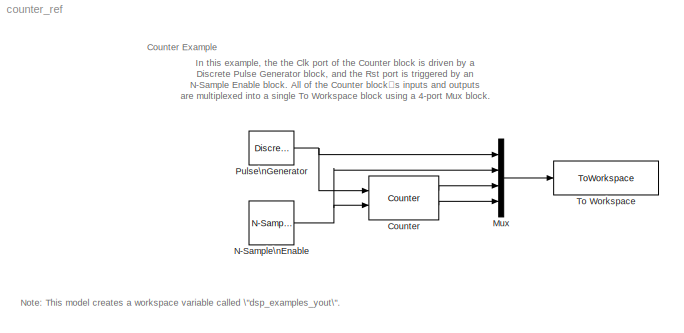
MODEL counter_ref
KIND model
CONFIG AbsTol = auto
CONFIG FixedStep = auto
CONFIG MaxStep = auto
CONFIG MinStep = auto
CONFIG PostLoadFcn = set_param(gcs,'SimulationCommand','Update')
CONFIG RelTol = 1e-3
CONFIG Solver = FixedStepDiscrete
CONFIG SolverMode = Auto
CONFIG StartTime = 0.0
CONFIG StopTime = 30
BLOCK [Reference] Counter  REF=dspswit3/Counter
  CountEvent = Rising edge
  CounterSize = User defined
  Direction = Down
  HitValue = 4
  InitialCount = 5
  MaxCount = 20
  Output = Count and Hit
  Ports = [2, 2]
  ResetInput = on
  SamplesPerFrame = 1
  SourceBlock = dspswit3/Counter
  SourceType = Counter
  Ts = 1
BLOCK [Mux] Mux
  DisplayOption = bar
  Inputs = 4
  Ports = [4, 1]
BLOCK [Reference] N-Sample\nEnable  REF=dspswit3/N-Sample\nEnable
  ActiveLevel = High (1)
  N = 6
  Ports = [0, 1]
  SourceBlock = dspswit3/N-Sample\nEnable
  SourceType = N-Sample Enable
  TriggerType = Rising edge
  Ts = 1
  reset = off
BLOCK [DiscretePulseGenerator] Pulse\nGenerator
  Amplitude = 1
  Period = 2
  PhaseDelay = 0
  PulseType = Sample-based
  PulseWidth = 1
  SampleTime = 1
  VectorParams1D = on
BLOCK [ToWorkspace] To Workspace
  Decimation = 1
  MaxDataPoints = inf
  SampleTime = -1
  SaveFormat = Array
  VariableName = dsp_examples_yout
LINE Counter:1 -> Mux:3
LINE Counter:2 -> Mux:4
LINE Mux:1 -> To Workspace:1
NET N-Sample\nEnable:1 -> Counter:2, Mux:2
NET Pulse\nGenerator:1 -> Counter:1, Mux:1
note: NET lines group one-source signal fan-out (src -> all destinations, sorted); 1:1 wires keep LINE
